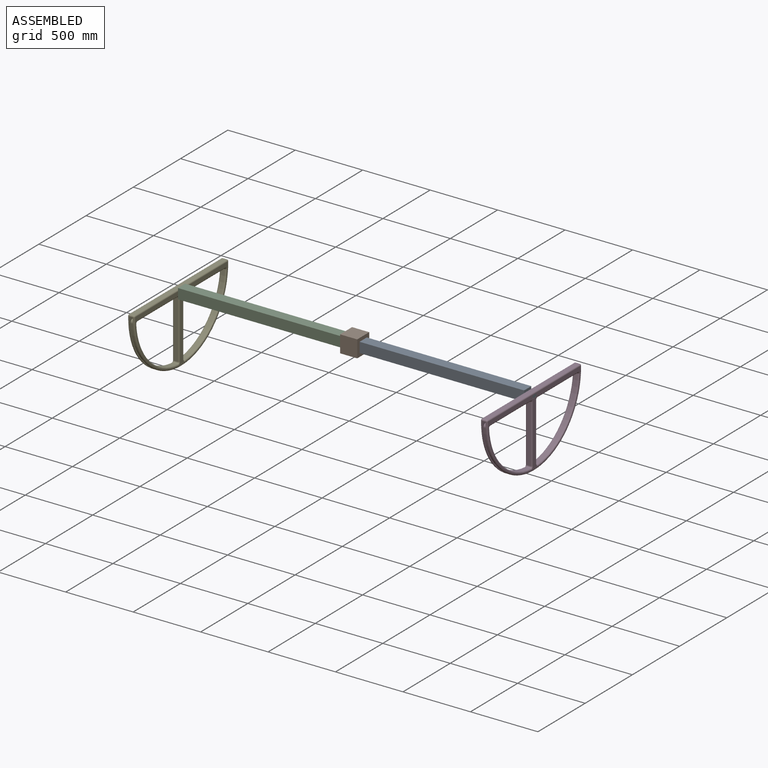
[diagram: assembled view]
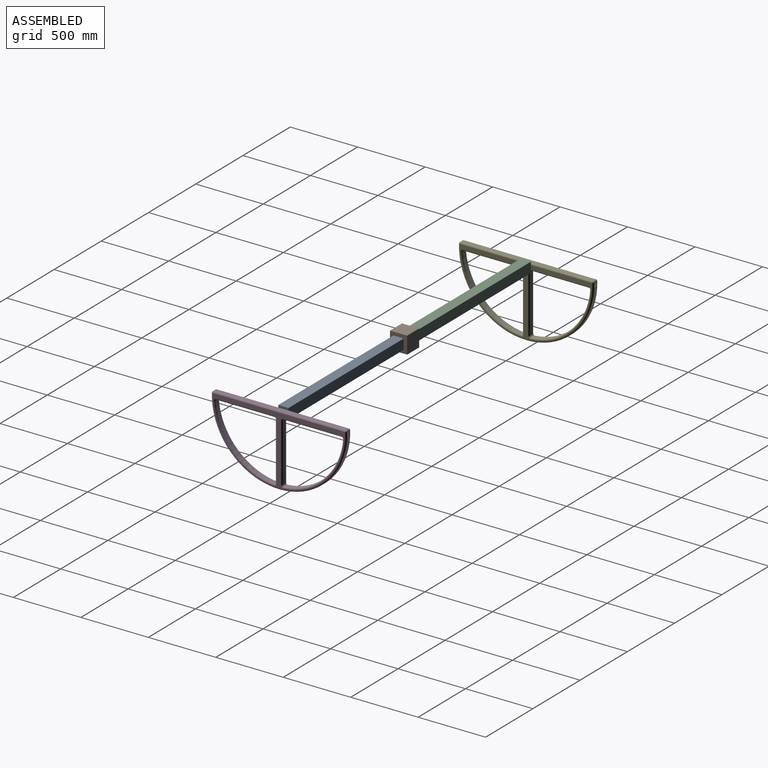
[diagram: assembled view, second angle]
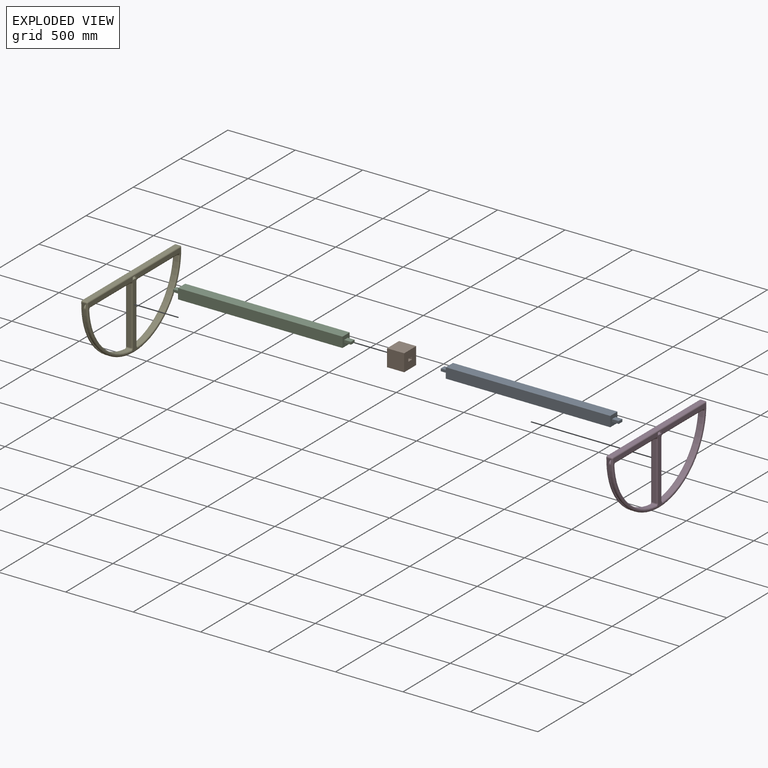
[diagram: exploded view]
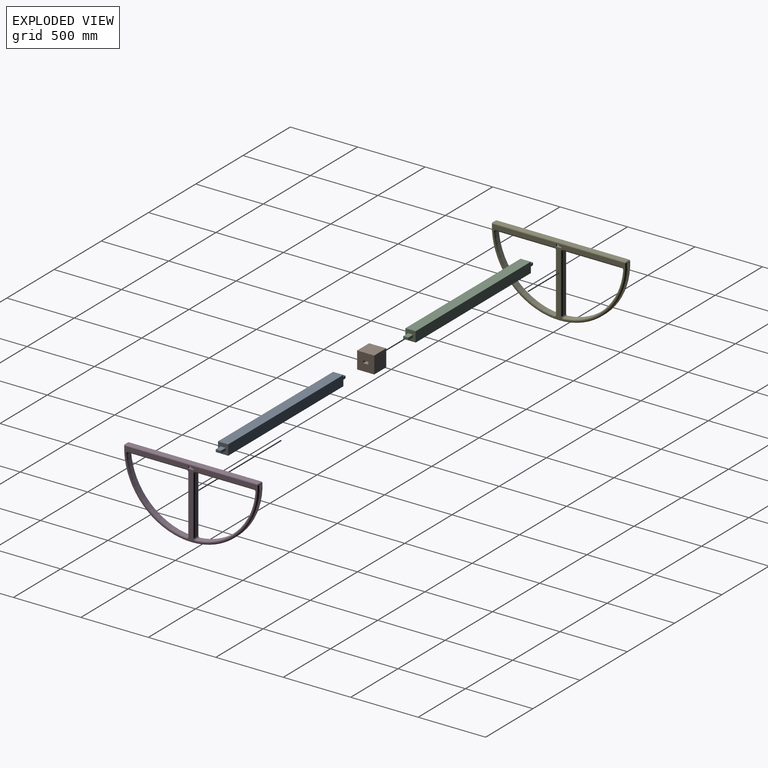
[diagram: exploded view, second angle]
ASSEMBLY  parts=5 mates=4
PART A: 76 faces, bbox 76.2x1319.2x76.2 mm
  f0: plane 1218.69x75.69mm, normal (0,0,-1), area 92245.2mm2, adj f64,f69,f72,f75
  f1: plane 1218.69x75.69mm, normal (1,0,0), area 92245.2mm2, adj f61,f70,f71,f75
  f2: plane 1218.69x75.69mm, normal (0,0,1), area 92245.2mm2, adj f56,f60,f61,f62
  f3: plane 1218.69x75.69mm, normal (-1,0,0), area 92245.2mm2, adj f56,f59,f63,f64
  f4: plane 75.69x75.69mm, normal (0,-1,0), area 4974.4mm2, adj f44,f45,f48,f49,f52,f53,f54,f55
  f5: plane 75.69x75.69mm, normal (0,1,0), area 4974.4mm2, adj f21,f26,f27,f30,f31,f33,f34,f35
  f6: plane 37.59x18.54mm, normal (0,1,0), area 697mm2, adj f16,f19,f23,f24
  f7: plane 49.5x18.54mm, normal (-1,0,0), area 917.9mm2, adj f19,f20,f29,f30
  f8: plane 49.5x37.59mm, normal (0,0,1), area 1861mm2, adj f16,f20,f21,f22
  f9: plane 49.5x18.54mm, normal (1,0,0), area 917.9mm2, adj f22,f23,f31,f32
  f10: plane 49.5x37.59mm, normal (0,0,-1), area 1861mm2, adj f24,f29,f32,f35
  f11: plane 49.5x37.59mm, normal (0,0,-1), area 1861mm2, adj f41,f50,f51,f55
  f12: plane 49.5x18.54mm, normal (1,0,0), area 917.9mm2, adj f42,f43,f51,f52
  f13: plane 49.5x37.59mm, normal (0,0,1), area 1861mm2, adj f36,f39,f43,f44
  f14: plane 49.5x18.54mm, normal (-1,0,0), area 917.9mm2, adj f39,f40,f49,f50
  f15: plane 37.59x18.54mm, normal (0,-1,0), area 697mm2, adj f36,f40,f41,f42
  f16: cylinder r=0.25mm len=37.59mm, axis (-1,0,0), area 15mm2, adj f6,f8,f17,f18
  f17: sphere r=0.25mm, area 0.1mm2, adj f16,f19,f20
  f18: sphere r=0.25mm, area 0.1mm2, adj f16,f22,f23
  f19: cylinder r=0.25mm len=18.54mm, axis (0,0,-1), area 7.4mm2, adj f6,f7,f17,f25
  f20: cylinder r=0.25mm len=49.5mm, axis (0,-1,0), area 19.8mm2, adj f7,f8,f17,f26
  f21: cylinder r=0.25mm len=37.59mm, axis (-1,0,0), area 15mm2, adj f5,f8,f26,f27
  f22: cylinder r=0.25mm len=49.5mm, axis (0,1,0), area 19.8mm2, adj f8,f9,f18,f27
  f23: cylinder r=0.25mm len=18.54mm, axis (0,0,1), area 7.4mm2, adj f6,f9,f18,f28
  f24: cylinder r=0.25mm len=37.59mm, axis (1,0,0), area 15mm2, adj f6,f10,f25,f28
  f25: sphere r=0.25mm, area 0.1mm2, adj f19,f24,f29
  f26: torus R=0.51mm, axis (0,-1,0), area 0.2mm2, adj f5,f20,f21,f30
  f27: torus R=0.51mm, axis (0,-1,0), area 0.2mm2, adj f5,f21,f22,f31
  f28: sphere r=0.25mm, area 0.1mm2, adj f23,f24,f32
  f29: cylinder r=0.25mm len=49.5mm, axis (0,1,0), area 19.8mm2, adj f7,f10,f25,f33
  f30: cylinder r=0.25mm len=18.54mm, axis (0,0,-1), area 7.4mm2, adj f5,f7,f26,f33
  f31: cylinder r=0.25mm len=18.54mm, axis (0,0,1), area 7.4mm2, adj f5,f9,f27,f34
  f32: cylinder r=0.25mm len=49.5mm, axis (0,-1,0), area 19.8mm2, adj f9,f10,f28,f34
  f33: torus R=0.51mm, axis (0,-1,0), area 0.2mm2, adj f5,f29,f30,f35
  f34: torus R=0.51mm, axis (0,-1,0), area 0.2mm2, adj f5,f31,f32,f35
  f35: cylinder r=0.25mm len=37.59mm, axis (1,0,0), area 15mm2, adj f5,f10,f33,f34
  f36: cylinder r=0.25mm len=37.59mm, axis (1,0,0), area 15mm2, adj f13,f15,f37,f38
  f37: sphere r=0.25mm, area 0.1mm2, adj f36,f39,f40
  f38: sphere r=0.25mm, area 0.1mm2, adj f36,f42,f43
  f39: cylinder r=0.25mm len=49.5mm, axis (0,-1,0), area 19.8mm2, adj f13,f14,f37,f45
  f40: cylinder r=0.25mm len=18.54mm, axis (0,0,1), area 7.4mm2, adj f14,f15,f37,f46
  f41: cylinder r=0.25mm len=37.59mm, axis (-1,0,0), area 15mm2, adj f11,f15,f46,f47
  f42: cylinder r=0.25mm len=18.54mm, axis (0,0,-1), area 7.4mm2, adj f12,f15,f38,f47
  f43: cylinder r=0.25mm len=49.5mm, axis (0,1,0), area 19.8mm2, adj f12,f13,f38,f48
  f44: cylinder r=0.25mm len=37.59mm, axis (1,0,0), area 15mm2, adj f4,f13,f45,f48
  f45: torus R=0.51mm, axis (0,-1,0), area 0.2mm2, adj f4,f39,f44,f49
  f46: sphere r=0.25mm, area 0.1mm2, adj f40,f41,f50
  f47: sphere r=0.25mm, area 0.1mm2, adj f41,f42,f51
  f48: torus R=0.51mm, axis (0,-1,0), area 0.2mm2, adj f4,f43,f44,f52
  f49: cylinder r=0.25mm len=18.54mm, axis (0,0,1), area 7.4mm2, adj f4,f14,f45,f53
  f50: cylinder r=0.25mm len=49.5mm, axis (0,1,0), area 19.8mm2, adj f11,f14,f46,f53
  f51: cylinder r=0.25mm len=49.5mm, axis (0,-1,0), area 19.8mm2, adj f11,f12,f47,f54
  f52: cylinder r=0.25mm len=18.54mm, axis (0,0,-1), area 7.4mm2, adj f4,f12,f48,f54
  f53: torus R=0.51mm, axis (0,-1,0), area 0.2mm2, adj f4,f49,f50,f55
  f54: torus R=0.51mm, axis (0,-1,0), area 0.2mm2, adj f4,f51,f52,f55
  f55: cylinder r=0.25mm len=37.59mm, axis (-1,0,0), area 15mm2, adj f4,f11,f53,f54
  f56: cylinder r=0.25mm len=1218.69mm, axis (0,-1,0), area 486.2mm2, adj f2,f3,f57,f58
  f57: sphere r=0.25mm, area 0.1mm2, adj f56,f59,f60
  f58: sphere r=0.25mm, area 0.1mm2, adj f56,f62,f63
  f59: cylinder r=0.25mm len=75.69mm, axis (0,0,1), area 30.2mm2, adj f3,f4,f57,f65
  f60: cylinder r=0.25mm len=75.69mm, axis (1,0,0), area 30.2mm2, adj f2,f4,f57,f66
  f61: cylinder r=0.25mm len=1218.69mm, axis (0,1,0), area 486.2mm2, adj f1,f2,f66,f67
  f62: cylinder r=0.25mm len=75.69mm, axis (-1,0,0), area 30.2mm2, adj f2,f5,f58,f67
  f63: cylinder r=0.25mm len=75.69mm, axis (0,0,-1), area 30.2mm2, adj f3,f5,f58,f68
  f64: cylinder r=0.25mm len=1218.69mm, axis (0,1,0), area 486.2mm2, adj f0,f3,f65,f68
  f65: sphere r=0.25mm, area 0.1mm2, adj f59,f64,f69
  f66: sphere r=0.25mm, area 0.1mm2, adj f60,f61,f70
  f67: sphere r=0.25mm, area 0.1mm2, adj f61,f62,f71
  f68: sphere r=0.25mm, area 0.1mm2, adj f63,f64,f72
  f69: cylinder r=0.25mm len=75.69mm, axis (-1,0,0), area 30.2mm2, adj f0,f4,f65,f73
  f70: cylinder r=0.25mm len=75.69mm, axis (0,0,-1), area 30.2mm2, adj f1,f4,f66,f73
  f71: cylinder r=0.25mm len=75.69mm, axis (0,0,1), area 30.2mm2, adj f1,f5,f67,f74
  f72: cylinder r=0.25mm len=75.69mm, axis (1,0,0), area 30.2mm2, adj f0,f5,f68,f74
  f73: sphere r=0.25mm, area 0.1mm2, adj f69,f70,f75
  f74: sphere r=0.25mm, area 0.1mm2, adj f71,f72,f75
  f75: cylinder r=0.25mm len=1218.69mm, axis (0,-1,0), area 486.2mm2, adj f0,f1,f73,f74
PART B: 10 faces, bbox 127x127x127 mm
  f0: plane 127x127mm, normal (1,0,0), area 15403.2mm2, adj f2,f3,f4,f5,f6,f7,f8,f9
  f1: plane 127x127mm, normal (-1,0,0), area 15403.2mm2, adj f2,f3,f4,f5,f6,f7,f8,f9
  f2: plane 127x127mm, normal (0,0,-1), area 16129mm2, adj f0,f1,f4,f5
  f3: plane 127x127mm, normal (0,0,1), area 16129mm2, adj f0,f1,f4,f5
  f4: plane 127x127mm, normal (0,-1,0), area 16129mm2, adj f0,f1,f2,f3
  f5: plane 127x127mm, normal (0,1,0), area 16129mm2, adj f0,f1,f2,f3
  f6: plane 127x38.1mm, normal (0,0,1), area 4838.7mm2, adj f0,f1,f7,f9
  f7: plane 127x19.05mm, normal (0,-1,0), area 2419.3mm2, adj f0,f1,f6,f8
  f8: plane 127x38.1mm, normal (0,0,-1), area 4838.7mm2, adj f0,f1,f7,f9
  f9: plane 127x19.05mm, normal (0,1,0), area 2419.3mm2, adj f0,f1,f6,f8
PART C: same geometry as A
PART D: 117 faces, bbox 1082.4x50x566.2 mm
  f0: plane 980x505mm, normal (0,-1,0), area 50812.2mm2, adj f12,f16,f17,f20,f21,f24,f27,f31
  f1: plane 980x505mm, normal (0,1,0), area 50812.2mm2, adj f14,f18,f19,f22,f23,f25,f29,f33
  f2: plane 999.49x512.05mm, normal (0,1,0), area 54638.9mm2, adj f52,f53,f54,f55,f56,f57,f58,f59
  f3: plane 999.49x512.05mm, normal (0,-1,0), area 54638.9mm2, adj f52,f53,f54,f55,f56,f57,f58,f59
  f4: plane 428.68x30mm, normal (1,0,0), area 12860.4mm2, adj f15,f20,f23,f26
  f5: plane 428.68x30mm, normal (0,0,-1), area 12860.4mm2, adj f13,f21,f22,f26
  f6: cylinder r=500mm len=1000mm, axis (0,1,0), area 7972mm2, adj f42,f46,f47,f51,f65,f66,f67,f68
  f7: plane 428.68x30mm, normal (0,0,-1), area 12860.4mm2, adj f30,f35,f38,f41
  f8: plane 428.68x30mm, normal (-1,0,0), area 12860.4mm2, adj f28,f36,f37,f41
  f9: plane 979.54x30mm, normal (0,0,1), area 29386.2mm2, adj f42,f45,f48,f51
  f10: cylinder r=475mm len=437.9mm, axis (0,1,0), area 20236.7mm2, adj f27,f28,f29,f30
  f11: cylinder r=475mm len=437.9mm, axis (0,1,0), area 20236.7mm2, adj f12,f13,f14,f15
  f12: torus R=485mm, axis (0,-1,0), area 10676.9mm2, adj f0,f11,f16,f17
  f13: cylinder r=10mm len=30mm, axis (0,1,0), area 493.8mm2, adj f5,f11,f17,f18
  f14: torus R=485mm, axis (0,-1,0), area 10676.9mm2, adj f1,f11,f18,f19
  f15: cylinder r=10mm len=30mm, axis (0,1,0), area 493.8mm2, adj f4,f11,f16,f19
  f16: torus R=20mm, axis (0,-1,0), area 352.5mm2, adj f0,f12,f15,f20
  f17: torus R=20mm, axis (0,-1,0), area 352.5mm2, adj f0,f12,f13,f21
  f18: torus R=20mm, axis (0,-1,0), area 352.5mm2, adj f1,f13,f14,f22
  f19: torus R=20mm, axis (0,-1,0), area 352.5mm2, adj f1,f14,f15,f23
  f20: cylinder r=10mm len=428.68mm, axis (0,0,-1), area 6733.7mm2, adj f0,f4,f16,f24
  f21: cylinder r=10mm len=428.68mm, axis (-1,0,0), area 6733.7mm2, adj f0,f5,f17,f24
  f22: cylinder r=10mm len=428.68mm, axis (1,0,0), area 6733.7mm2, adj f1,f5,f18,f25
  f23: cylinder r=10mm len=428.68mm, axis (0,0,1), area 6733.7mm2, adj f1,f4,f19,f25
  f24: torus R=20mm, axis (0,-1,0), area 336.4mm2, adj f0,f20,f21,f26
  f25: torus R=20mm, axis (0,-1,0), area 336.4mm2, adj f1,f22,f23,f26
  f26: cylinder r=10mm len=30mm, axis (0,1,0), area 471.2mm2, adj f4,f5,f24,f25
  f27: torus R=485mm, axis (0,-1,0), area 10676.9mm2, adj f0,f10,f31,f32
  f28: cylinder r=10mm len=30mm, axis (0,1,0), area 493.8mm2, adj f8,f10,f32,f33
  f29: torus R=485mm, axis (0,-1,0), area 10676.9mm2, adj f1,f10,f33,f34
  f30: cylinder r=10mm len=30mm, axis (0,1,0), area 493.8mm2, adj f7,f10,f31,f34
  f31: torus R=20mm, axis (0,-1,0), area 352.5mm2, adj f0,f27,f30,f35
  f32: torus R=20mm, axis (0,-1,0), area 352.5mm2, adj f0,f27,f28,f36
  f33: torus R=20mm, axis (0,-1,0), area 352.5mm2, adj f1,f28,f29,f37
  f34: torus R=20mm, axis (0,-1,0), area 352.5mm2, adj f1,f29,f30,f38
  f35: cylinder r=10mm len=428.68mm, axis (-1,0,0), area 6733.7mm2, adj f0,f7,f31,f39
  f36: cylinder r=10mm len=428.68mm, axis (0,0,1), area 6733.7mm2, adj f0,f8,f32,f39
  f37: cylinder r=10mm len=428.68mm, axis (0,0,-1), area 6733.7mm2, adj f1,f8,f33,f40
  f38: cylinder r=10mm len=428.68mm, axis (1,0,0), area 6733.7mm2, adj f1,f7,f34,f40
  f39: torus R=20mm, axis (0,-1,0), area 336.4mm2, adj f0,f35,f36,f41
  f40: torus R=20mm, axis (0,-1,0), area 336.4mm2, adj f1,f37,f38,f41
  f41: cylinder r=10mm len=30mm, axis (0,-1,0), area 471.2mm2, adj f7,f8,f39,f40
  f42: cylinder r=10mm len=30mm, axis (0,1,0), area 462.1mm2, adj f6,f9,f43,f44
  f43: sphere r=10mm, area 154mm2, adj f42,f45,f46
  f44: sphere r=10mm, area 154mm2, adj f42,f47,f48
  f45: cylinder r=10mm len=979.54mm, axis (1,0,0), area 15386.6mm2, adj f0,f9,f43,f49
  f46: torus R=490mm, axis (0,-1,0), area 24972.1mm2, adj f0,f6,f43,f49
  f47: torus R=490mm, axis (0,-1,0), area 24972.1mm2, adj f1,f6,f44,f50
  f48: cylinder r=10mm len=979.54mm, axis (-1,0,0), area 15386.6mm2, adj f1,f9,f44,f50
  f49: sphere r=10mm, area 154mm2, adj f45,f46,f51
  f50: sphere r=10mm, area 154mm2, adj f47,f48,f51
  f51: cylinder r=10mm len=30mm, axis (0,1,0), area 462.1mm2, adj f6,f9,f49,f50
  f52: plane 428.68x24.6mm, normal (-1,0,0), area 10545.6mm2, adj f2,f3,f60,f61
  f53: plane 428.68x24.6mm, normal (0,0,1), area 10545.6mm2, adj f2,f3,f59,f61
  f54: plane 428.68x24.6mm, normal (0,0,1), area 10545.6mm2, adj f2,f3,f63,f64
  f55: plane 428.68x24.6mm, normal (1,0,0), area 10545.6mm2, adj f2,f3,f62,f64
  f56: plane 999.18x24.6mm, normal (0,0,-1), area 24579.7mm2, adj f2,f3,f65,f68
  f57: cylinder r=487.7mm len=449.61mm, axis (0,1,0), area 17037.7mm2, adj f2,f3,f62,f63
  f58: cylinder r=487.7mm len=449.61mm, axis (0,1,0), area 17037.7mm2, adj f2,f3,f59,f60
  f59: cylinder r=22.7mm len=24.6mm, axis (0,1,0), area 919.2mm2, adj f2,f3,f53,f58
  f60: cylinder r=22.7mm len=24.6mm, axis (0,1,0), area 919.2mm2, adj f2,f3,f52,f58
  f61: cylinder r=22.7mm len=24.6mm, axis (0,1,0), area 877.2mm2, adj f2,f3,f52,f53
  f62: cylinder r=22.7mm len=24.6mm, axis (0,1,0), area 919.2mm2, adj f2,f3,f55,f57
  f63: cylinder r=22.7mm len=24.6mm, axis (0,1,0), area 919.2mm2, adj f2,f3,f54,f57
  f64: cylinder r=22.7mm len=24.6mm, axis (0,-1,0), area 877.2mm2, adj f2,f3,f54,f55
  f65: cylinder r=0.25mm len=25.11mm, axis (0,1,0), area 10mm2, adj f2,f3,f6,f56,f66,f67
  f66: torus R=499.75mm, axis (0,-1,0), area 636.5mm2, adj f3,f6,f65,f68
  f67: torus R=499.75mm, axis (0,-1,0), area 636.5mm2, adj f2,f6,f65,f68
  f68: cylinder r=0.25mm len=25.11mm, axis (0,1,0), area 10mm2, adj f2,f3,f6,f56,f66,f67
  f69: plane 18.54x12.19mm, normal (1,0,0), area 226.1mm2, adj f103,f104,f112,f113
  f70: plane 37.59x12.19mm, normal (0,0,-1), area 458.3mm2, adj f97,f100,f104,f105
  f71: plane 18.54x12.19mm, normal (-1,0,0), area 226.1mm2, adj f100,f101,f110,f111
  f72: plane 37.59x12.19mm, normal (0,0,1), area 458.3mm2, adj f102,f111,f112,f116
  f73: plane 37.59x12.19mm, normal (0,0,1), area 458.3mm2, adj f85,f90,f93,f96
  f74: plane 18.54x12.19mm, normal (-1,0,0), area 226.1mm2, adj f80,f81,f90,f91
  f75: plane 37.59x12.19mm, normal (0,0,-1), area 458.3mm2, adj f77,f81,f82,f83
  f76: plane 18.54x12.19mm, normal (1,0,0), area 226.1mm2, adj f83,f84,f92,f93
  f77: cylinder r=0.25mm len=37.59mm, axis (-1,0,0), area 15mm2, adj f2,f75,f78,f79
  f78: torus R=0.51mm, axis (0,-1,0), area 0.2mm2, adj f2,f77,f80,f81
  f79: torus R=0.51mm, axis (0,-1,0), area 0.2mm2, adj f2,f77,f83,f84
  f80: cylinder r=0.25mm len=18.54mm, axis (0,0,1), area 7.4mm2, adj f2,f74,f78,f86
  f81: cylinder r=0.25mm len=12.19mm, axis (0,1,0), area 4.9mm2, adj f74,f75,f78,f87
  f82: cylinder r=0.25mm len=37.59mm, axis (1,0,0), area 15mm2, adj f0,f75,f87,f88
  f83: cylinder r=0.25mm len=12.19mm, axis (0,-1,0), area 4.9mm2, adj f75,f76,f79,f88
  f84: cylinder r=0.25mm len=18.54mm, axis (0,0,-1), area 7.4mm2, adj f2,f76,f79,f89
  f85: cylinder r=0.25mm len=37.59mm, axis (1,0,0), area 15mm2, adj f2,f73,f86,f89
  f86: torus R=0.51mm, axis (0,-1,0), area 0.2mm2, adj f2,f80,f85,f90
  f87: torus R=0.51mm, axis (0,-1,0), area 0.2mm2, adj f0,f81,f82,f91
  f88: torus R=0.51mm, axis (0,-1,0), area 0.2mm2, adj f0,f82,f83,f92
  f89: torus R=0.51mm, axis (0,-1,0), area 0.2mm2, adj f2,f84,f85,f93
  f90: cylinder r=0.25mm len=12.19mm, axis (0,-1,0), area 4.9mm2, adj f73,f74,f86,f94
  f91: cylinder r=0.25mm len=18.54mm, axis (0,0,-1), area 7.4mm2, adj f0,f74,f87,f94
  f92: cylinder r=0.25mm len=18.54mm, axis (0,0,1), area 7.4mm2, adj f0,f76,f88,f95
  f93: cylinder r=0.25mm len=12.19mm, axis (0,1,0), area 4.9mm2, adj f73,f76,f89,f95
  f94: torus R=0.51mm, axis (0,-1,0), area 0.2mm2, adj f0,f90,f91,f96
  f95: torus R=0.51mm, axis (0,-1,0), area 0.2mm2, adj f0,f92,f93,f96
  f96: cylinder r=0.25mm len=37.59mm, axis (-1,0,0), area 15mm2, adj f0,f73,f94,f95
  f97: cylinder r=0.25mm len=37.59mm, axis (1,0,0), area 15mm2, adj f3,f70,f98,f99
  f98: torus R=0.51mm, axis (0,-1,0), area 0.2mm2, adj f3,f97,f100,f101
  f99: torus R=0.51mm, axis (0,-1,0), area 0.2mm2, adj f3,f97,f103,f104
  f100: cylinder r=0.25mm len=12.19mm, axis (0,1,0), area 4.9mm2, adj f70,f71,f98,f106
  f101: cylinder r=0.25mm len=18.54mm, axis (0,0,-1), area 7.4mm2, adj f3,f71,f98,f107
  f102: cylinder r=0.25mm len=37.59mm, axis (-1,0,0), area 15mm2, adj f3,f72,f107,f108
  f103: cylinder r=0.25mm len=18.54mm, axis (0,0,1), area 7.4mm2, adj f3,f69,f99,f108
  f104: cylinder r=0.25mm len=12.19mm, axis (0,-1,0), area 4.9mm2, adj f69,f70,f99,f109
  f105: cylinder r=0.25mm len=37.59mm, axis (-1,0,0), area 15mm2, adj f1,f70,f106,f109
  f106: torus R=0.51mm, axis (0,-1,0), area 0.2mm2, adj f1,f100,f105,f110
  f107: torus R=0.51mm, axis (0,-1,0), area 0.2mm2, adj f3,f101,f102,f111
  f108: torus R=0.51mm, axis (0,-1,0), area 0.2mm2, adj f3,f102,f103,f112
  f109: torus R=0.51mm, axis (0,-1,0), area 0.2mm2, adj f1,f104,f105,f113
  f110: cylinder r=0.25mm len=18.54mm, axis (0,0,1), area 7.4mm2, adj f1,f71,f106,f114
  f111: cylinder r=0.25mm len=12.19mm, axis (0,-1,0), area 4.9mm2, adj f71,f72,f107,f114
  f112: cylinder r=0.25mm len=12.19mm, axis (0,1,0), area 4.9mm2, adj f69,f72,f108,f115
  f113: cylinder r=0.25mm len=18.54mm, axis (0,0,-1), area 7.4mm2, adj f1,f69,f109,f115
  f114: torus R=0.51mm, axis (0,-1,0), area 0.2mm2, adj f1,f110,f111,f116
  f115: torus R=0.51mm, axis (0,-1,0), area 0.2mm2, adj f1,f112,f113,f116
  f116: cylinder r=0.25mm len=37.59mm, axis (1,0,0), area 15mm2, adj f1,f72,f114,f115
PART E: same geometry as D
PLACE A rot(axis=(0,0,1),90deg) t=(724.9,-15.22,-132.84)mm
PLACE B t=(51.8,-15.22,-132.84)mm
PLACE C rot(axis=(0,0,1),90deg) t=(-621.3,-15.22,-132.84)mm
PLACE D rot(axis=(0,0,1),90deg) t=(1334.52,-15.22,-132.84)mm
PLACE E rot(axis=(0,0,1),90deg) t=(-1280.91,-15.22,-132.84)mm
MATE fastened C.f6 <-> E.f6  axis (-1,0,0) through (-1280.91,-15.22,-132.84)mm
MATE fastened A.f5 <-> B.f0  axis (-1,0,0) through (115.3,-15.22,-132.84)mm
MATE fastened C.f4 <-> B.f1  axis (1,0,0) through (-11.7,-15.22,-132.84)mm
MATE fastened A.f15 <-> D.f10  axis (1,0,0) through (1384.52,-15.22,-132.84)mm
